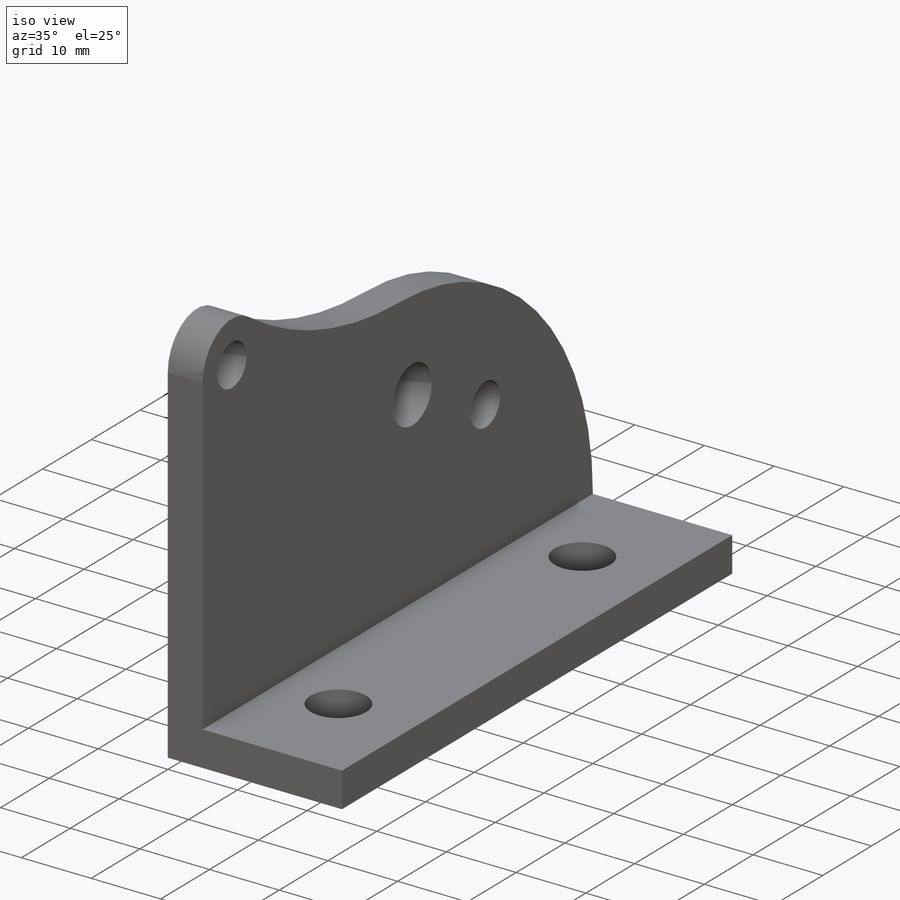
[diagram: iso view]
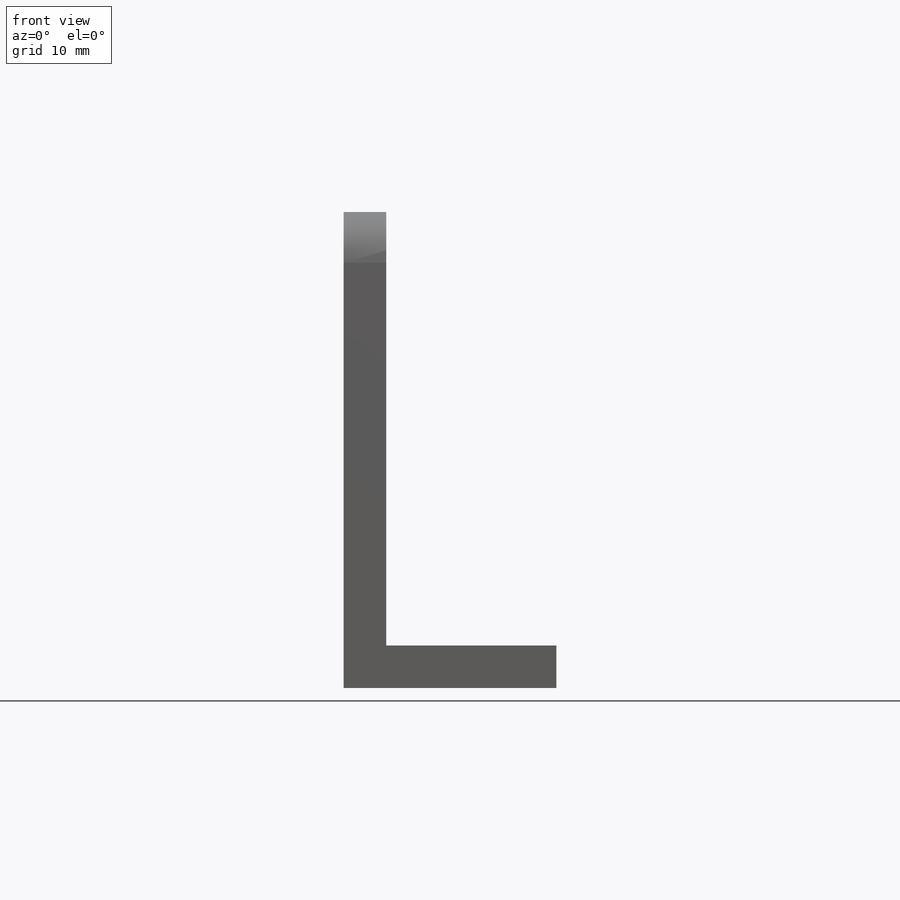
[diagram: front view]
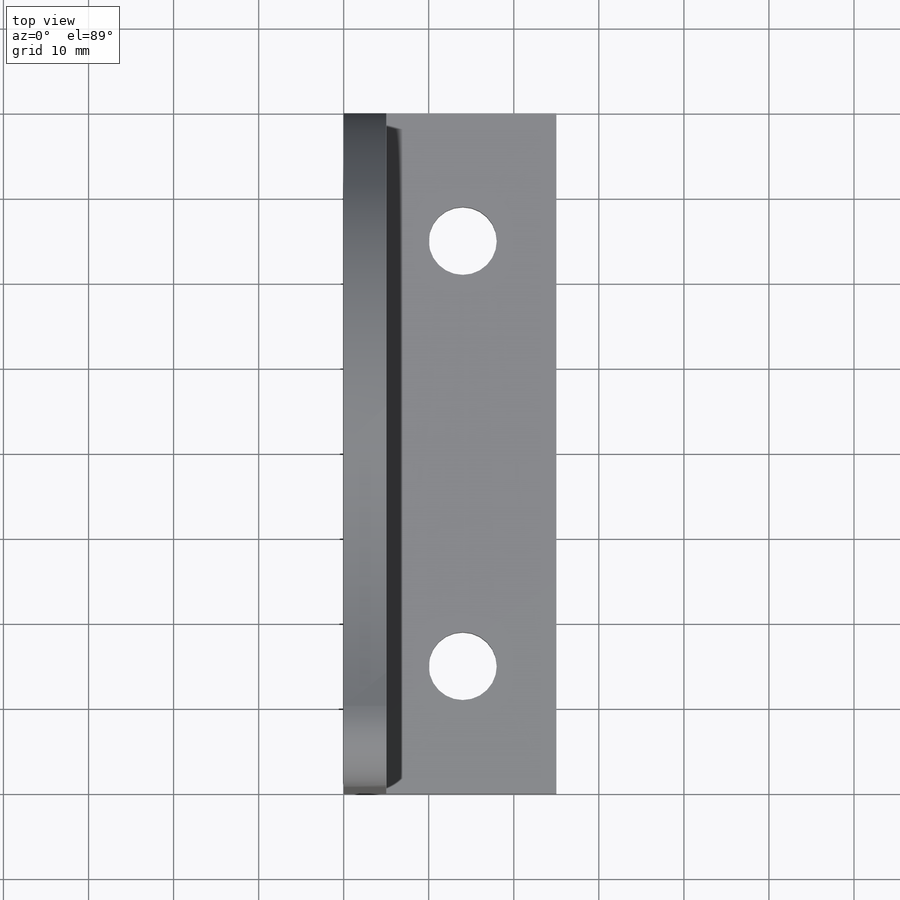
[diagram: top view]
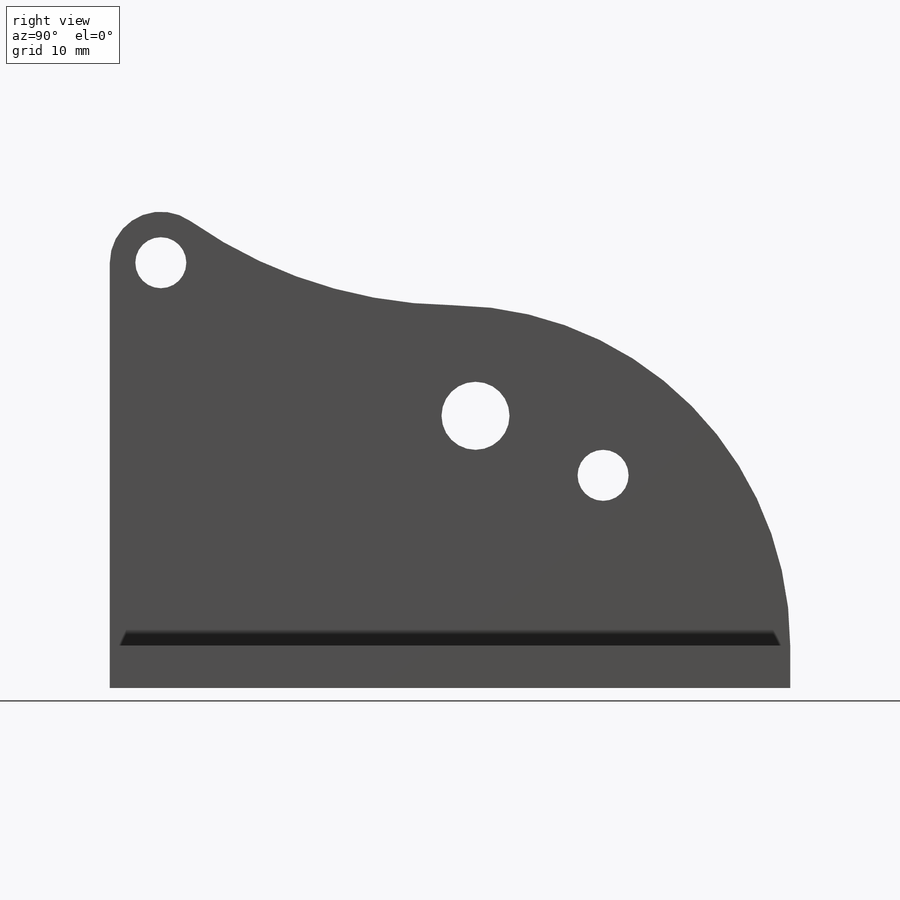
[diagram: right view]
SOLIDWORKS PART (.sldprt)
format: sldprt  version: not decoded by parser v0  size: 232,960 bytes
history: native  units: mm
features: sketch x7, cut_extrude x4, extrude x2, material x1 (+13 scaffold rows collapsed)
feature tree (27):
  scaffold x13  (default folders/planes/origin — collapsed)
  material  "6061-T6 (SS)"
  sketch  "Sketch1"  dims[D1=100.0mm D2=80.0mm]
  extrude  "Boss-Extrude1"  Depth=5mm
  sketch  "Sketch2"  dims[D1=5.0mm]
  extrude  "Boss-Extrude2"  Depth=20mm
  sketch  "Sketch3"  dims[D3=8.0mm D1=15.0mm D2=11.0mm D4=15.0mm]
  cut_extrude  "Cut-Extrude1"  [1 undecoded]
  sketch  "Sketch4"  dims[c1.D3=8.0mm c1.D1=55.0mm c1.D2=40.0mm c2.D1=32.0mm c2.D2=37.0mm]
  cut_extrude  "Cut-Extrude2"  [1 undecoded]
  sketch  "Sketch5"  dims[c1.D1=40.0mm c1.D2=12.0mm c1.D4=55.0mm c1.D5=6.0mm c1.D3=50.0mm c2.D4=~14.844352mm c2.D6=12.0mm c2.D7=6.0mm]
  cut_extrude  "Cut-Extrude4"  [1 undecoded]
  sketch  "Sketch6"  dims[D1=100.0mm D2=60.0mm]
  sketch  "Sketch7"  dims[D1=6.0mm D2=25.0mm D3=22.0mm]
  cut_extrude  "Cut-Extrude5"  Depth=10mm
decode coverage: 10 of 13 modeling features carry decoded parameters
note: ~ marks probable driven/reference dimensions
note: 3 parameter values undecoded
summary: no parameter record found for 3 features
note: suppression state not decoded; provenance and decode notes live in map.json
